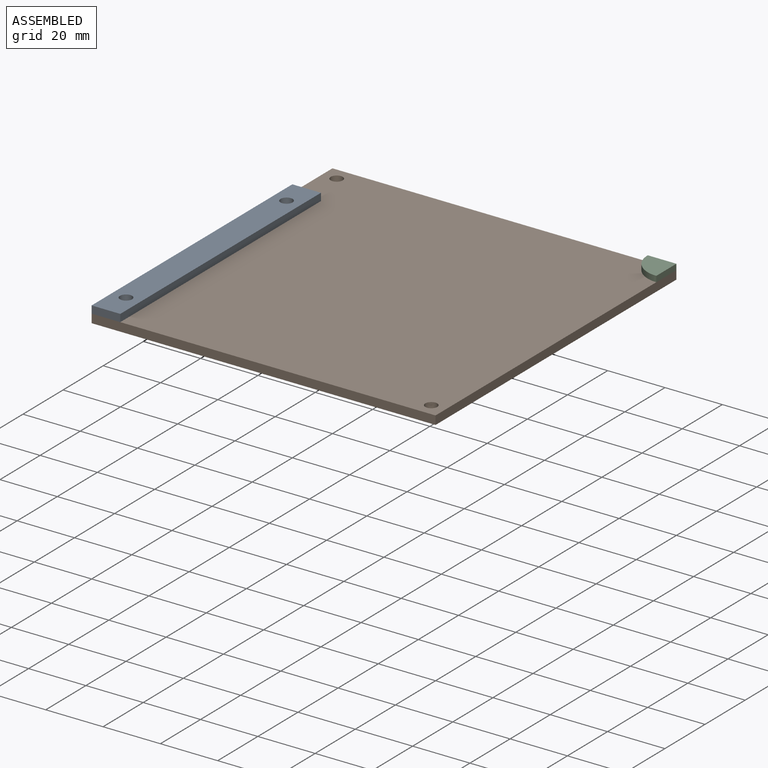
[diagram: assembled view]
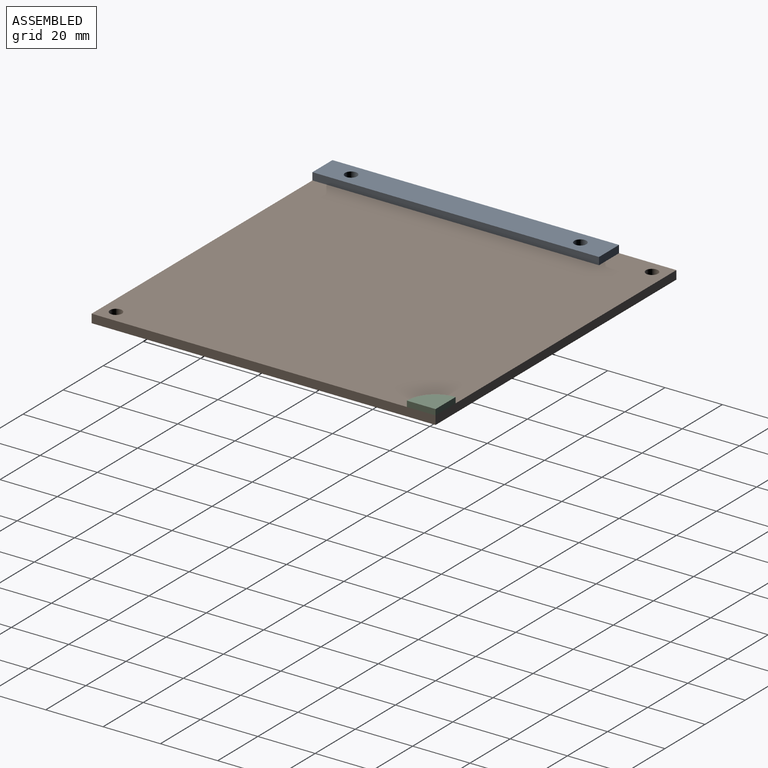
[diagram: assembled view, second angle]
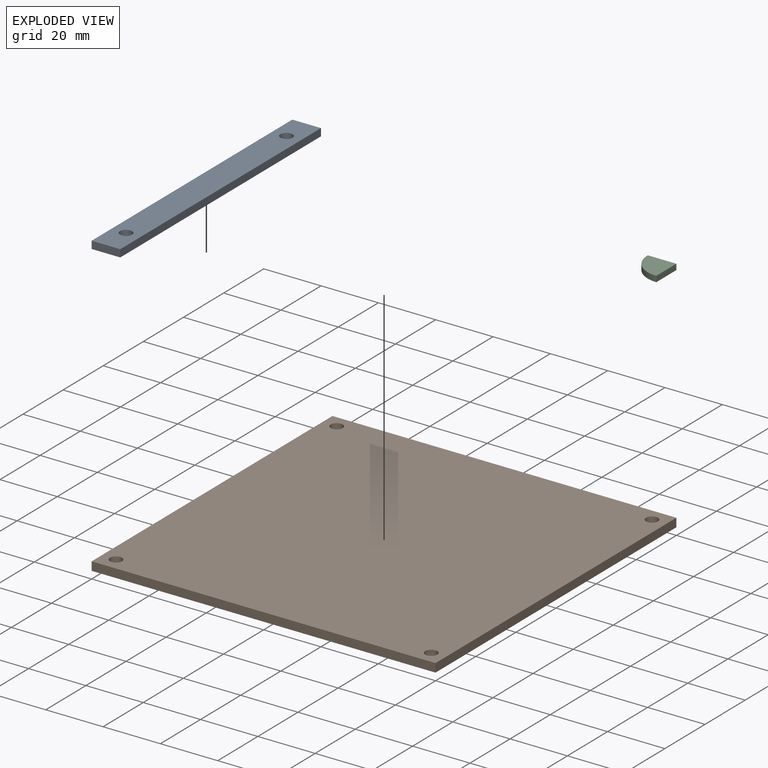
[diagram: exploded view]
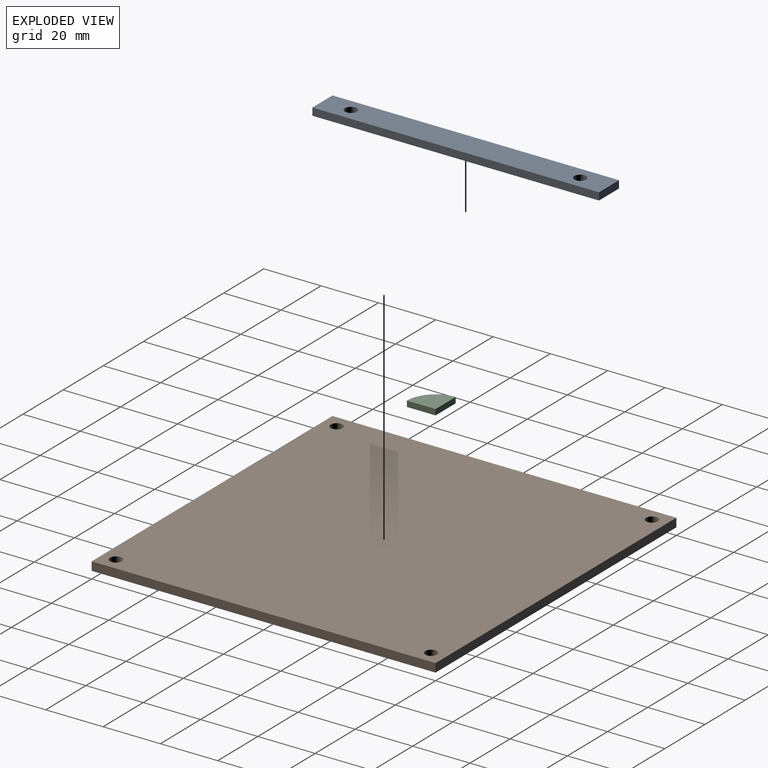
[diagram: exploded view, second angle]
ASSEMBLY  parts=3 mates=2
PART A: 10 faces, bbox 10x100x2.6 mm
  f0: plane 10x2.6mm, normal (0,1,0), area 26mm2, adj f1,f3,f4,f5
  f1: plane 100x2.6mm, normal (-1,0,0), area 260mm2, adj f0,f2,f4,f5
  f2: plane 10x2.6mm, normal (0,-1,0), area 26mm2, adj f1,f3,f4,f5
  f3: plane 100x2.6mm, normal (1,0,0), area 260mm2, adj f0,f2,f4,f5
  f4: plane 100x10mm, normal (0,0,1), area 972.3mm2, adj f0,f1,f2,f3,f6,f8
  f5: plane 100x10mm, normal (0,0,-1), area 1000mm2, adj f0,f1,f2,f3
  f6: cylinder r=2.1mm len=4.2mm, axis (0,0,1), area 26.4mm2, adj f4,f7
  f7: plane 4.2x4.2mm, normal (0,0,1), area 13.9mm2, adj f6
  f8: cylinder r=2.1mm len=4.2mm, axis (0,0,1), area 26.4mm2, adj f4,f9
  f9: plane 4.2x4.2mm, normal (0,0,1), area 13.9mm2, adj f8
PART B: 14 faces, bbox 120x120x3 mm
  f0: plane 120x3mm, normal (0,1,0), area 360mm2, adj f1,f3,f4,f5
  f1: plane 120x3mm, normal (-1,0,0), area 360mm2, adj f0,f2,f4,f5
  f2: plane 120x3mm, normal (0,-1,0), area 360mm2, adj f1,f3,f4,f5
  f3: plane 120x3mm, normal (1,0,0), area 360mm2, adj f0,f2,f4,f5
  f4: plane 120x120mm, normal (0,0,1), area 14344.6mm2, adj f0,f1,f2,f3,f6,f8,f10,f12
  f5: plane 120x120mm, normal (0,0,-1), area 14400mm2, adj f0,f1,f2,f3
  f6: cylinder r=2.1mm len=4.2mm, axis (0,0,1), area 26.4mm2, adj f4,f7
  f7: plane 4.2x4.2mm, normal (0,0,1), area 13.9mm2, adj f6
  f8: cylinder r=2.1mm len=4.2mm, axis (0,0,1), area 26.4mm2, adj f4,f9
  f9: plane 4.2x4.2mm, normal (0,0,1), area 13.9mm2, adj f8
  f10: cylinder r=2.1mm len=4.2mm, axis (0,0,1), area 26.4mm2, adj f4,f11
  f11: plane 4.2x4.2mm, normal (0,0,1), area 13.9mm2, adj f10
  f12: cylinder r=2.1mm len=4.2mm, axis (0,0,1), area 26.4mm2, adj f4,f13
  f13: plane 4.2x4.2mm, normal (0,0,1), area 13.9mm2, adj f12
PART C: 5 faces, bbox 10x10x2 mm
  f0: plane 10x2mm, normal (0,1,0), area 20mm2, adj f1,f2,f3,f4
  f1: plane 10x2mm, normal (-1,0,0), area 20mm2, adj f0,f2,f3,f4
  f2: cylinder r=10mm len=10mm, axis (0,0,-1), area 31.4mm2, adj f0,f1,f3,f4
  f3: plane 10x10mm, normal (0,0,1), area 78.5mm2, adj f0,f1,f2
  f4: plane 10x10mm, normal (0,0,-1), area 78.5mm2, adj f0,f1,f2
PLACE A t=(5,50,3)mm
PLACE B t=(60,60,1.5)mm
PLACE C rot(axis=(0,0,-1),90deg) t=(115,115,3)mm
MATE fastened A.f5 <-> B.f4  axis (0,0,1) through (0,0,3)mm
MATE fastened C.f2 <-> B.f4  axis (0,0,1) through (120,120,3)mm
